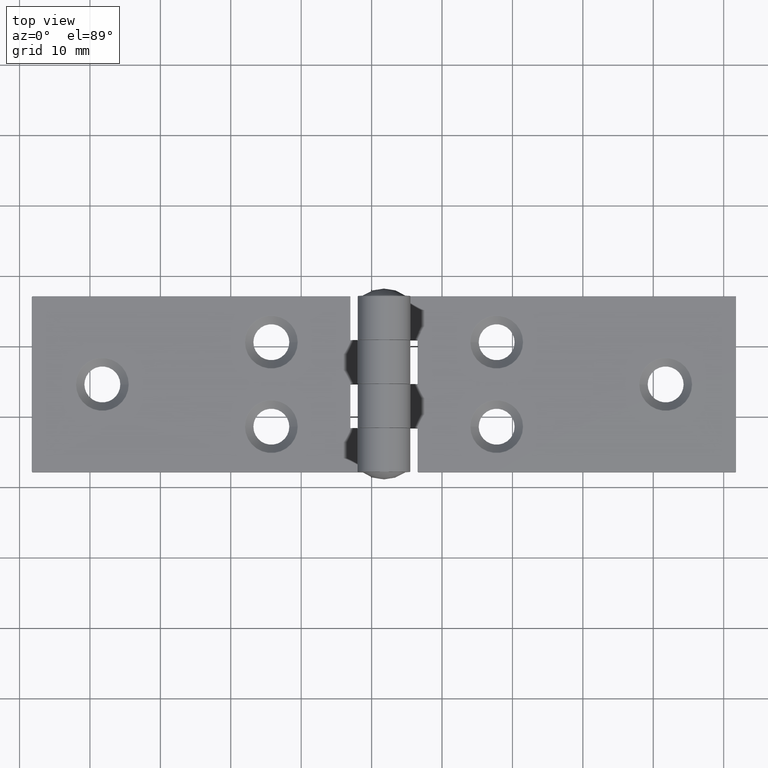
[diagram: clean part render]
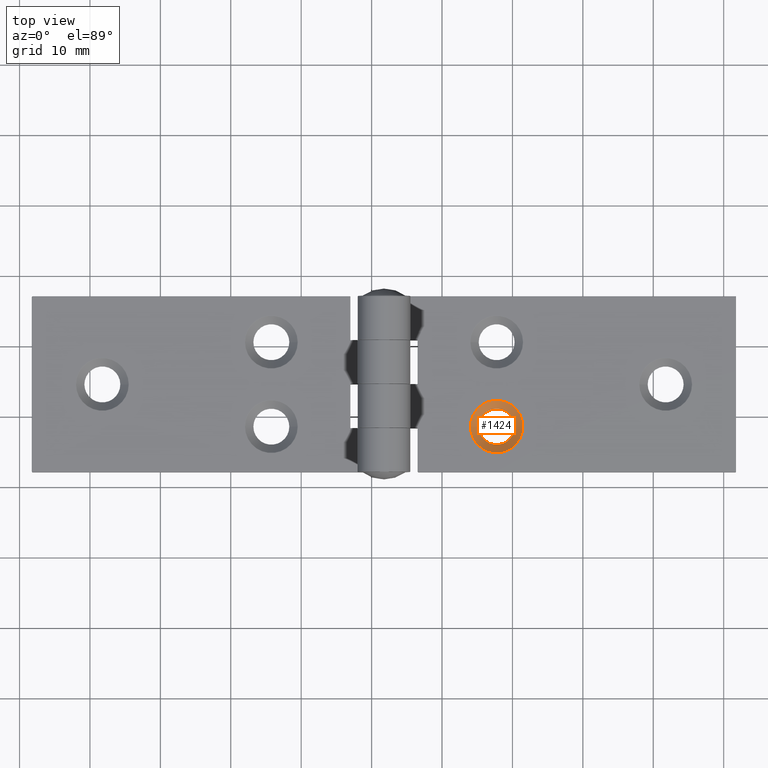
[diagram: same view with one face highlighted and labeled with its STEP entity id]
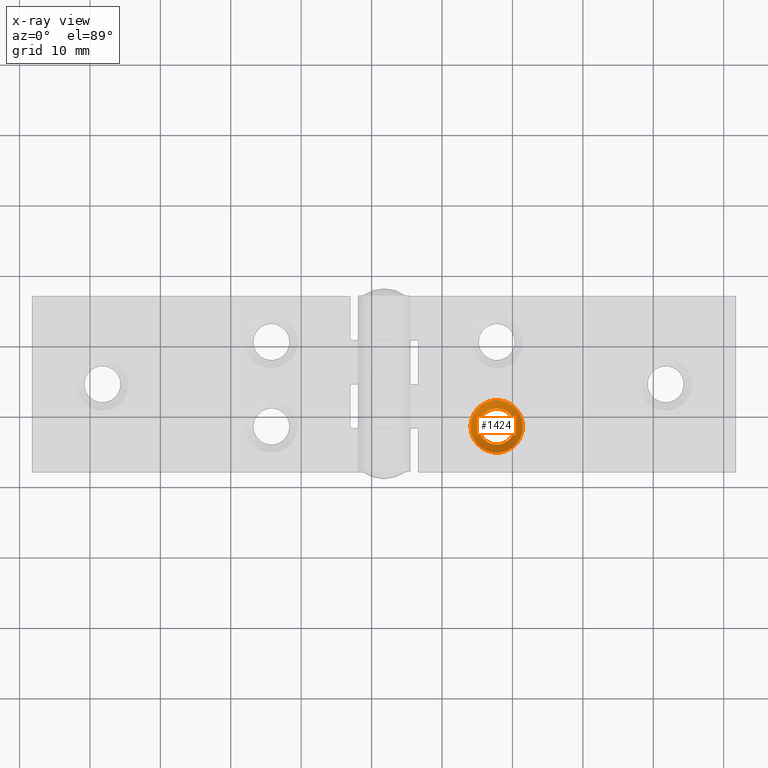
[diagram: x-ray of the same camera — body ghosted, the highlighted face saturated]
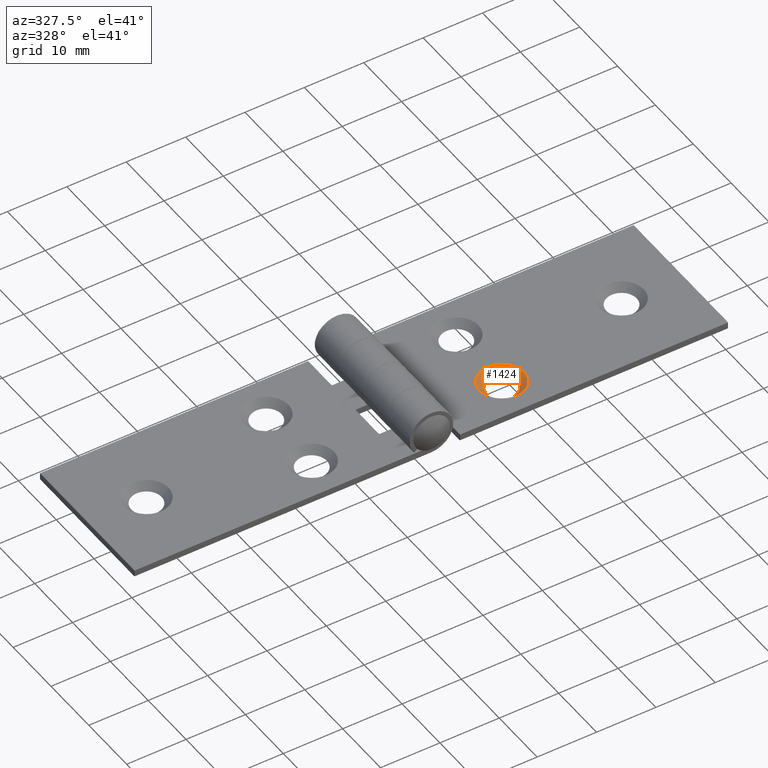
[diagram: same view with one face highlighted and labeled with its STEP entity id]
A machine part, top view. The second image highlights one B-rep face of the part: STEP entity #1424.
The next image is the same camera in x-ray: the body ghosted, the highlighted face saturated — about 0% of this face is hidden behind the body in this view.
A second angle (auxiliary view) of the same face is appended — the face is thin or edge-on in the first view.
In plain terms, the highlighted conical surface has half-angle 45 deg.
Its self-contained STEP definition (entity closure, byte-faithful):
#58 = VERTEX_POINT ( 'NONE', #72 ) ;
#72 = CARTESIAN_POINT ( 'NONE',  ( 36.54999999999999716, 6.000000000000000888, 0.000000000000000000 ) ) ;
#102 = ORIENTED_EDGE ( 'NONE', *, *, #1316, .F. ) ;
#152 = DIRECTION ( 'NONE',  ( 1.000000000000000000, 0.000000000000000000, 0.000000000000000000 ) ) ;
#466 = EDGE_LOOP ( 'NONE', ( #1481 ) ) ;
#823 = CARTESIAN_POINT ( 'NONE',  ( 37.72071067811867096, 6.000000000000000888, 1.170710678118654702 ) ) ;
#874 = DIRECTION ( 'NONE',  ( 0.000000000000000000, 0.000000000000000000, 1.000000000000000000 ) ) ;
#1316 = EDGE_CURVE ( 'NONE', #58, #58, #3184, .T. ) ;
#1382 = AXIS2_PLACEMENT_3D ( 'NONE', #4246, #3875, #152 ) ;
#1424 = ADVANCED_FACE ( 'NONE', ( #4683, #2709 ), #2651, .F. ) ;
#1481 = ORIENTED_EDGE ( 'NONE', *, *, #3263, .T. ) ;
#1680 = CARTESIAN_POINT ( 'NONE',  ( 34.00000000000000000, 6.000000000000000888, 0.000000000000000000 ) ) ;
#1824 = CIRCLE ( 'NONE', #2244, 3.720710678118667403 ) ;
#1887 = CARTESIAN_POINT ( 'NONE',  ( 34.00000000000000000, 6.000000000000000888, 1.170710678118654702 ) ) ;
#2244 = AXIS2_PLACEMENT_3D ( 'NONE', #1887, #3739, #4137 ) ;
#2268 = EDGE_LOOP ( 'NONE', ( #102 ) ) ;
#2651 = CONICAL_SURFACE ( 'NONE', #1382, 2.549999999999996714, 0.7853981633974520538 ) ;
#2709 = FACE_BOUND ( 'NONE', #2268, .T. ) ;
#2938 = VERTEX_POINT ( 'NONE', #823 ) ;
#3184 = CIRCLE ( 'NONE', #4409, 2.549999999999996714 ) ;
#3263 = EDGE_CURVE ( 'NONE', #2938, #2938, #1824, .T. ) ;
#3739 = DIRECTION ( 'NONE',  ( 0.000000000000000000, 0.000000000000000000, 1.000000000000000000 ) ) ;
#3875 = DIRECTION ( 'NONE',  ( 0.000000000000000000, 0.000000000000000000, 1.000000000000000000 ) ) ;
#4137 = DIRECTION ( 'NONE',  ( 1.000000000000000000, 0.000000000000000000, 0.000000000000000000 ) ) ;
#4246 = CARTESIAN_POINT ( 'NONE',  ( 34.00000000000000000, 6.000000000000000888, -6.288372600415925717E-15 ) ) ;
#4409 = AXIS2_PLACEMENT_3D ( 'NONE', #1680, #874, #4653 ) ;
#4653 = DIRECTION ( 'NONE',  ( 1.000000000000000000, 0.000000000000000000, 0.000000000000000000 ) ) ;
#4683 = FACE_OUTER_BOUND ( 'NONE', #466, .T. ) ;